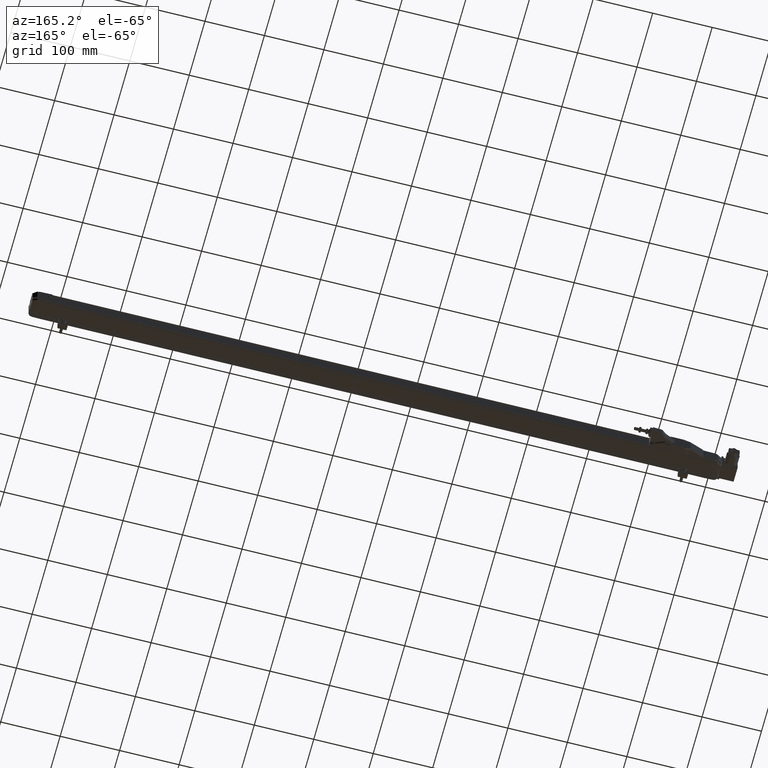
[diagram: clean part render]
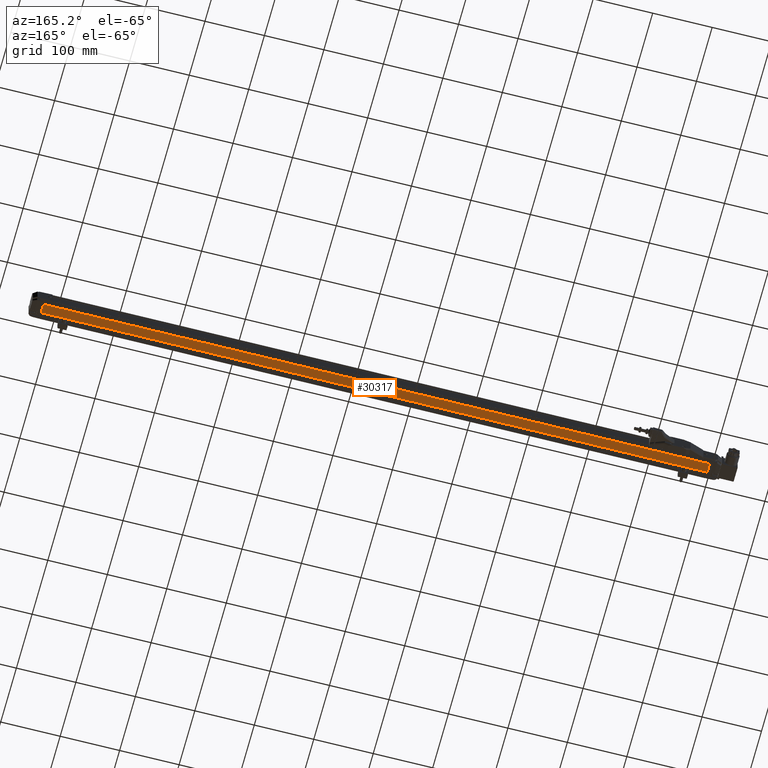
[diagram: same view with one face highlighted and labeled with its STEP entity id]
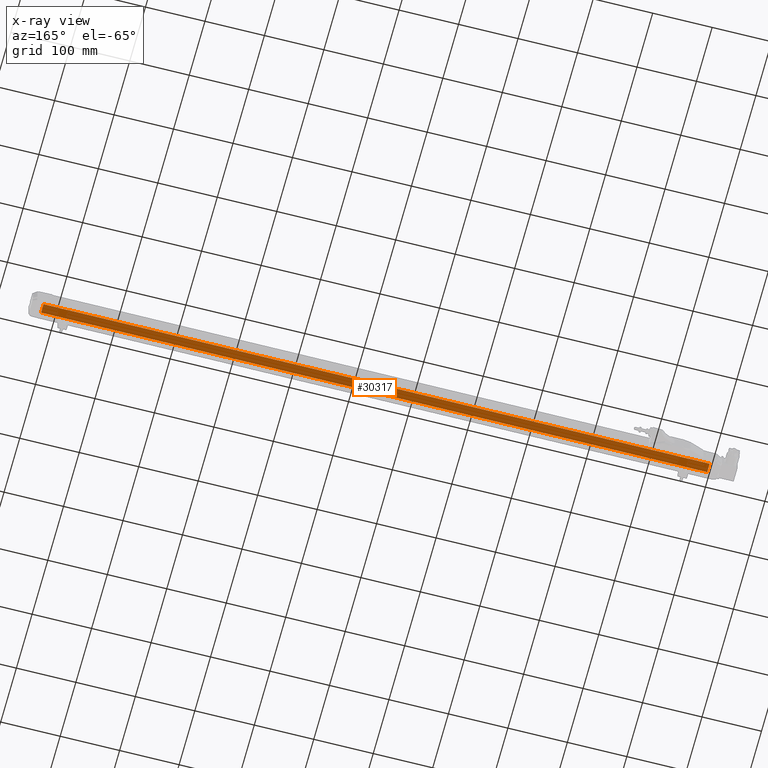
[diagram: x-ray of the same camera — body ghosted, the highlighted face saturated]
A machine part, auxiliary view. The second image highlights one B-rep face of the part: STEP entity #30317.
The next image is the same camera in x-ray: the body ghosted, the highlighted face saturated — about 0% of this face is hidden behind the body in this view.
In plain terms, the highlighted planar face has unit normal (0, 0, 1).
Its self-contained STEP definition (entity closure, byte-faithful):
#1709 = CARTESIAN_POINT ( 'NONE',  ( -11.81102362204724621, 1.061023630314960498, -1.299077997440945209 ) ) ;
#1866 = LINE ( 'NONE', #19776, #22125 ) ;
#2725 = DIRECTION ( 'NONE',  ( -6.829894528618835672E-25, -1.000000000000000000, 1.936991253392631728E-26 ) ) ;
#3126 = EDGE_CURVE ( 'NONE', #13347, #28404, #38040, .T. ) ;
#10331 = EDGE_LOOP ( 'NONE', ( #35592, #20552, #14285, #33010 ) ) ;
#10836 = AXIS2_PLACEMENT_3D ( 'NONE', #28730, #25001, #32434 ) ;
#13064 = VECTOR ( 'NONE', #18680, 39.37007874015748143 ) ;
#13347 = VERTEX_POINT ( 'NONE', #24339 ) ;
#14285 = ORIENTED_EDGE ( 'NONE', *, *, #30390, .F. ) ;
#15668 = LINE ( 'NONE', #1709, #13064 ) ;
#16091 = EDGE_CURVE ( 'NONE', #19532, #28404, #34984, .T. ) ;
#18680 = DIRECTION ( 'NONE',  ( -6.829894528618835672E-25, -1.000000000000000000, 1.936991253392631728E-26 ) ) ;
#19532 = VERTEX_POINT ( 'NONE', #33821 ) ;
#19776 = CARTESIAN_POINT ( 'NONE',  ( -11.81102362204724621, 1.061023630314960498, -1.299077997440945209 ) ) ;
#20552 = ORIENTED_EDGE ( 'NONE', *, *, #16091, .F. ) ;
#21279 = FACE_OUTER_BOUND ( 'NONE', #10331, .T. ) ;
#22125 = VECTOR ( 'NONE', #40724, 39.37007874015748143 ) ;
#22218 = EDGE_CURVE ( 'NONE', #34229, #13347, #1866, .T. ) ;
#24339 = CARTESIAN_POINT ( 'NONE',  ( 32.28346456692914046, 1.061023630314960498, -1.299077997440945209 ) ) ;
#25001 = DIRECTION ( 'NONE',  ( 1.341063538875720069E-28, 1.936991253392631728E-26, 1.000000000000000000 ) ) ;
#28404 = VERTEX_POINT ( 'NONE', #33281 ) ;
#28730 = CARTESIAN_POINT ( 'NONE',  ( -11.81102362204724621, 1.061023630314960498, -1.299077997440945209 ) ) ;
#30317 = ADVANCED_FACE ( 'NONE', ( #21279 ), #38950, .F. ) ;
#30390 = EDGE_CURVE ( 'NONE', #34229, #19532, #15668, .T. ) ;
#31516 = VECTOR ( 'NONE', #2725, 39.37007874015748143 ) ;
#32434 = DIRECTION ( 'NONE',  ( 1.000000000000000000, -6.829894528618835672E-25, -1.341063538875720069E-28 ) ) ;
#33010 = ORIENTED_EDGE ( 'NONE', *, *, #22218, .T. ) ;
#33281 = CARTESIAN_POINT ( 'NONE',  ( 32.28346456692914046, 0.4468503849212597800, -1.299077997440945209 ) ) ;
#33821 = CARTESIAN_POINT ( 'NONE',  ( -11.81102362204724621, 0.4468503849212597800, -1.299077997440945209 ) ) ;
#34229 = VERTEX_POINT ( 'NONE', #41234 ) ;
#34557 = CARTESIAN_POINT ( 'NONE',  ( 32.28346456692914046, 1.061023630314960498, -1.299077997440945209 ) ) ;
#34984 = LINE ( 'NONE', #36365, #44255 ) ;
#35592 = ORIENTED_EDGE ( 'NONE', *, *, #3126, .T. ) ;
#36365 = CARTESIAN_POINT ( 'NONE',  ( -11.81102362204724621, 0.4468503849212597800, -1.299077997440945209 ) ) ;
#38040 = LINE ( 'NONE', #34557, #31516 ) ;
#38950 = PLANE ( 'NONE',  #10836 ) ;
#39400 = DIRECTION ( 'NONE',  ( 1.000000000000000000, -6.829894528618835672E-25, -1.341063538875720069E-28 ) ) ;
#40724 = DIRECTION ( 'NONE',  ( 1.000000000000000000, -6.829894528618835672E-25, -1.341063538875720069E-28 ) ) ;
#41234 = CARTESIAN_POINT ( 'NONE',  ( -11.81102362204724621, 1.061023630314960498, -1.299077997440945209 ) ) ;
#44255 = VECTOR ( 'NONE', #39400, 39.37007874015748143 ) ;